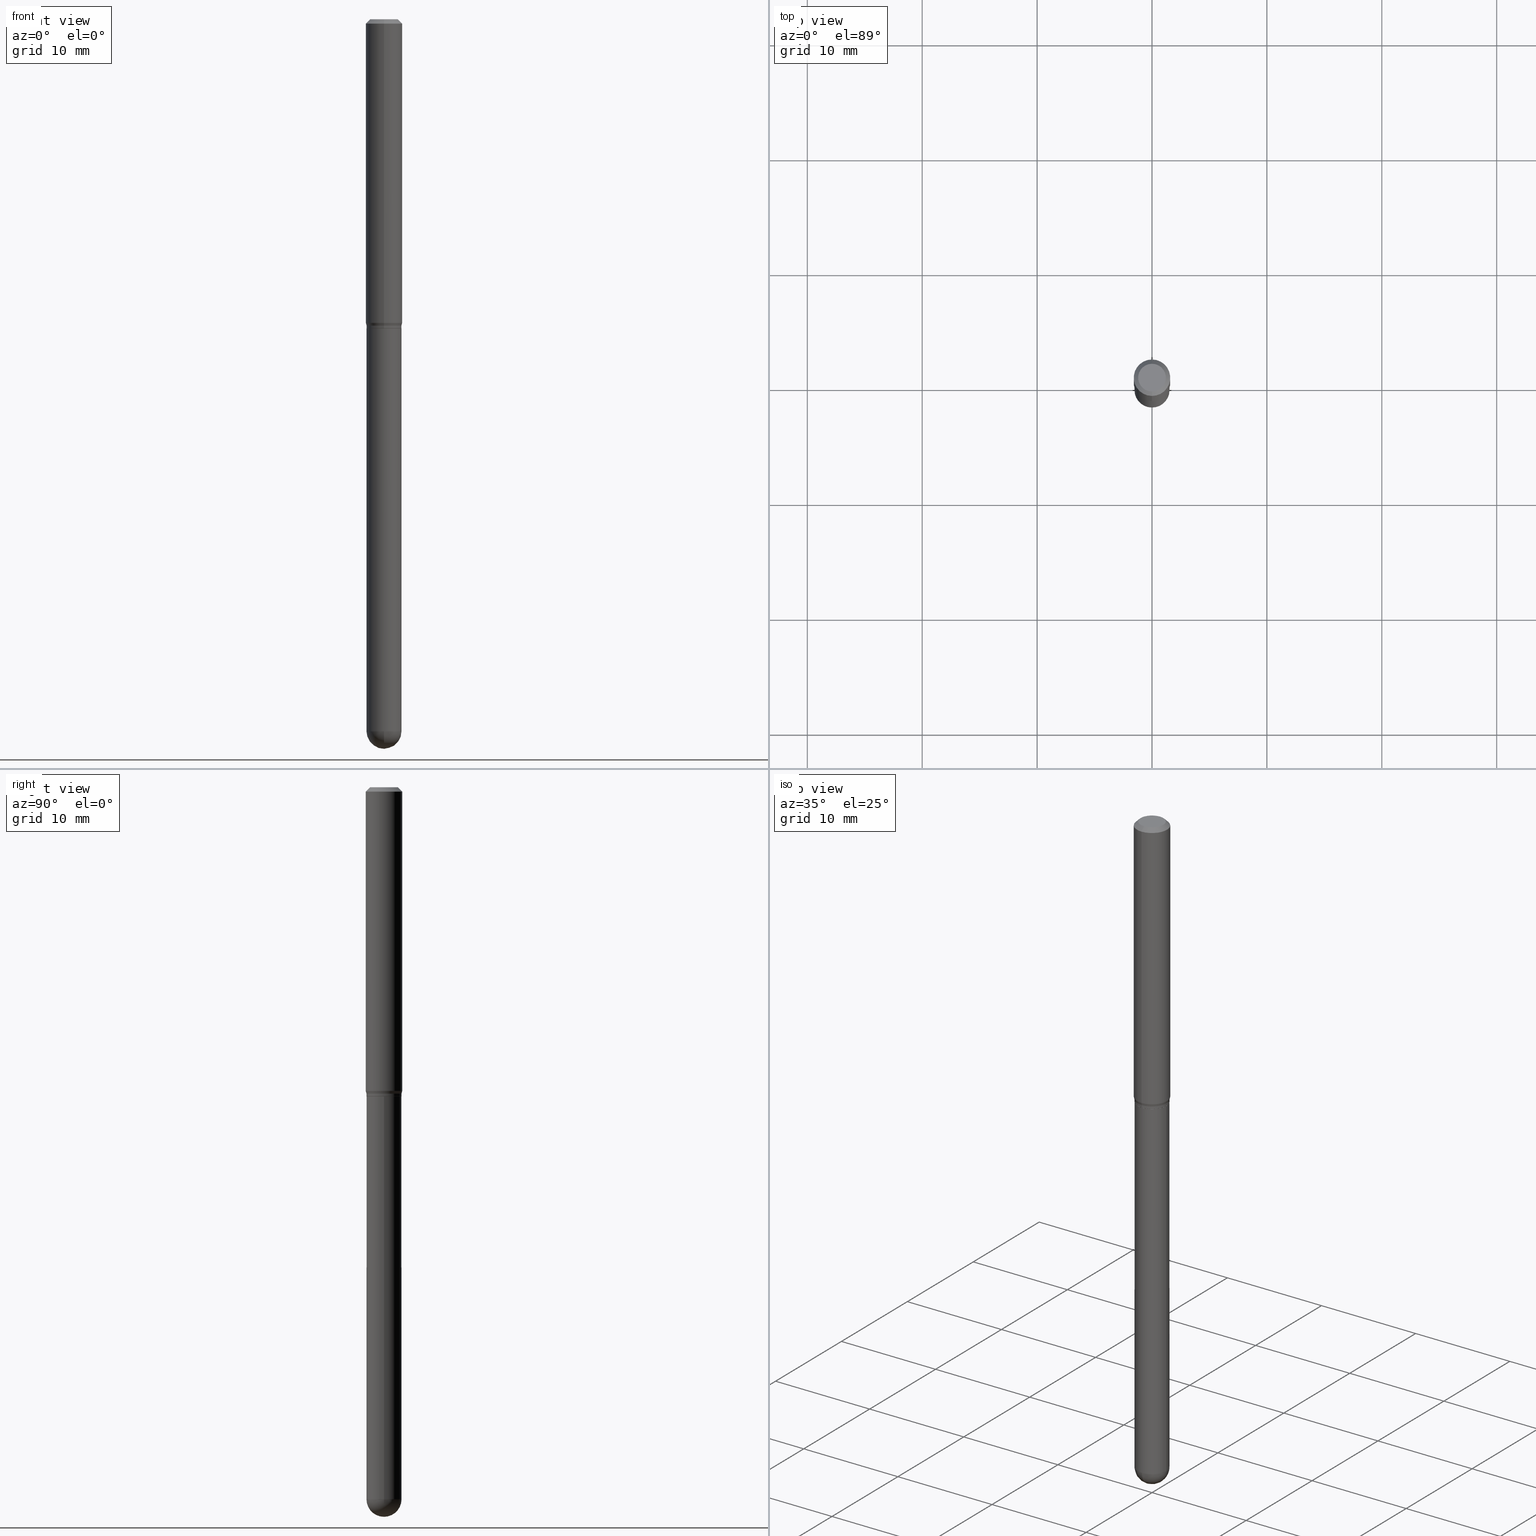
[diagram: canonical four-view strip — front | top / right | iso, engineering-drawing reading convention]
A machine part, canonical four-view strip (front | top / right | iso — engineering-drawing reading convention). The complete STEP part file that produces these views, byte-faithful:
ISO-10303-21;
HEADER;
FILE_DESCRIPTION (( 'STEP AP203' ),
    '1' );
FILE_NAME ('02799.STEP',
    '2024-03-07T21:38:32',
    ( '' ),
    ( '' ),
    'SwSTEP 2.0',
    'SolidWorks 2023',
    '' );
FILE_SCHEMA (( 'CONFIG_CONTROL_DESIGN' ));
ENDSEC;

DATA;
#1 = EDGE_CURVE ( 'NONE', #177, #458, #26, .T. ) ;
#2 = ADVANCED_FACE ( 'NONE', ( #320 ), #318, .T. ) ;
#3 = ORIENTED_EDGE ( 'NONE', *, *, #87, .T. ) ;
#4 = VECTOR ( 'NONE', #411, 39.37007874015748143 ) ;
#5 = CARTESIAN_POINT ( 'NONE',  ( 4.263256414560870649E-16, 0.05999999999999652833, -1.050000000000000488 ) ) ;
#6 = ORIENTED_EDGE ( 'NONE', *, *, #465, .F. ) ;
#7 = CARTESIAN_POINT ( 'NONE',  ( 8.025358332353947452E-45, -1.145689468547074518E-30, -3.281555737865213508E-16 ) ) ;
#8 = PLANE ( 'NONE',  #201 ) ;
#9 = ORIENTED_EDGE ( 'NONE', *, *, #142, .T. ) ;
#10 = DIRECTION ( 'NONE',  ( -2.445468806185136597E-29, 3.491481338843145583E-15, 1.000000000000000000 ) ) ;
#11 = EDGE_CURVE ( 'NONE', #110, #176, #288, .T. ) ;
#12 = AXIS2_PLACEMENT_3D ( 'NONE', #38, #43, #509 ) ;
#13 = VECTOR ( 'NONE', #64, 39.37007874015748143 ) ;
#14 = DIRECTION ( 'NONE',  ( -6.982962677686265922E-15, -1.000000000000000000, 4.370956789862821150E-15 ) ) ;
#15 = EDGE_LOOP ( 'NONE', ( #206, #297, #275, #438 ) ) ;
#16 = CARTESIAN_POINT ( 'NONE',  ( 4.263256414560867198E-16, 0.05999999999999642425, -1.059500000000000330 ) ) ;
#17 = ORIENTED_EDGE ( 'NONE', *, *, #499, .F. ) ;
#18 = CLOSED_SHELL ( 'NONE', ( #77, #2, #249, #356, #425, #202, #257, #467, #397, #405, #296, #137 ) ) ;
#19 = VERTEX_POINT ( 'NONE', #250 ) ;
#20 = CARTESIAN_POINT ( 'NONE',  ( 8.025358332353947452E-45, -1.145689468547074518E-30, -3.281555737865213508E-16 ) ) ;
#21 = LOCAL_TIME ( 16, 38, 32.00000000000000000, #435 ) ;
#22 = PERSON_AND_ORGANIZATION ( #255, #138 ) ;
#23 = ORIENTED_EDGE ( 'NONE', *, *, #208, .F. ) ;
#24 = ORIENTED_EDGE ( 'NONE', *, *, #338, .F. ) ;
#25 = DATE_AND_TIME ( #426, #456 ) ;
#26 = CIRCLE ( 'NONE', #83, 0.04749999999999999362 ) ;
#27 = DIRECTION ( 'NONE',  ( -4.937700262164674260E-15, -0.7071067811865632269, 0.7071067811865319186 ) ) ;
#28 = CIRCLE ( 'NONE', #455, 0.06250000000000000000 ) ;
#29 = APPROVAL_STATUS ( 'not_yet_approved' ) ;
#30 = CARTESIAN_POINT ( 'NONE',  ( 0.000000000000000000, 0.000000000000000000, 0.000000000000000000 ) ) ;
#31 = CARTESIAN_POINT ( 'NONE',  ( 5.966943887091733341E-29, -8.519214466777275048E-15, -2.440000000000000391 ) ) ;
#32 = PERSON_AND_ORGANIZATION ( #255, #138 ) ;
#33 = DIMENSIONAL_EXPONENTS ( 1.000000000000000000, 0.000000000000000000, 0.000000000000000000, 0.000000000000000000, 0.000000000000000000, 0.000000000000000000, 0.000000000000000000 ) ;
#34 = ORIENTED_EDGE ( 'NONE', *, *, #328, .F. ) ;
#35 = DIRECTION ( 'NONE',  ( -6.982962677686265922E-15, -1.000000000000000000, 4.591341165822292005E-15 ) ) ;
#36 = LINE ( 'NONE', #122, #163 ) ;
#37 = DIRECTION ( 'NONE',  ( -6.982962677686265922E-15, -1.000000000000000000, 4.591341165822292005E-15 ) ) ;
#38 = CARTESIAN_POINT ( 'NONE',  ( 5.961812889356657010E-29, -8.526562347572160482E-15, -2.440000000000000391 ) ) ;
#39 = VECTOR ( 'NONE', #117, 39.37007874015748143 ) ;
#40 = AXIS2_PLACEMENT_3D ( 'NONE', #480, #287, #436 ) ;
#41 = CIRCLE ( 'NONE', #384, 0.05999999999999968553 ) ;
#42 = CC_DESIGN_APPROVAL ( #302, ( #85 ) ) ;
#43 = DIRECTION ( 'NONE',  ( -1.000000000000000000, 7.105427357601001070E-15, -4.926315508542082329E-29 ) ) ;
#44 = PERSON_AND_ORGANIZATION ( #255, #138 ) ;
#45 = DIRECTION ( 'NONE',  ( -2.445468806185136597E-29, 3.491481338843145583E-15, 1.000000000000000000 ) ) ;
#46 = EDGE_CURVE ( 'NONE', #378, #447, #51, .T. ) ;
#47 = EDGE_CURVE ( 'NONE', #66, #49, #178, .T. ) ;
#48 = DIRECTION ( 'NONE',  ( 2.445595617880551884E-29, -3.491299737277637269E-15, -1.000000000000000000 ) ) ;
#49 = VERTEX_POINT ( 'NONE', #469 ) ;
#50 = AXIS2_PLACEMENT_3D ( 'NONE', #279, #240, #37 ) ;
#51 = LINE ( 'NONE', #464, #432 ) ;
#52 = CIRCLE ( 'NONE', #179, 0.06000000000000001166 ) ;
#53 = CARTESIAN_POINT ( 'NONE',  ( 2.545057681022836912E-29, -3.633290454131592960E-15, -1.040669872981078825 ) ) ;
#54 = PRODUCT ( '02799', '02799', '', ( #243 ) ) ;
#55 = DIRECTION ( 'NONE',  ( -2.445595617880551604E-29, 3.491299737277637269E-15, 1.000000000000000000 ) ) ;
#56 = EDGE_CURVE ( 'NONE', #110, #217, #423, .T. ) ;
#57 = PLANE ( 'NONE',  #409 ) ;
#58 = EDGE_LOOP ( 'NONE', ( #259, #254, #459, #342 ) ) ;
#59 = CLOSED_SHELL ( 'NONE', ( #229, #451, #410, #232, #189 ) ) ;
#60 = CIRCLE ( 'NONE', #401, 0.05949999999999999040 ) ;
#61 = DIRECTION ( 'NONE',  ( 1.000000000000000000, -6.982962677686266711E-15, 0.000000000000000000 ) ) ;
#62 = VERTEX_POINT ( 'NONE', #70 ) ;
#63 = EDGE_CURVE ( 'NONE', #177, #89, #36, .T. ) ;
#64 = DIRECTION ( 'NONE',  ( -2.445595617880551884E-29, 3.491299737277637269E-15, 1.000000000000000000 ) ) ;
#65 = APPLICATION_PROTOCOL_DEFINITION ( 'international standard', 'config_control_design', 1994, #330 ) ;
#66 = VERTEX_POINT ( 'NONE', #193 ) ;
#67 = CC_DESIGN_PERSON_AND_ORGANIZATION_ASSIGNMENT ( #32, #233, ( #339 ) ) ;
#68 = ORIENTED_EDGE ( 'NONE', *, *, #499, .T. ) ;
#69 = ORIENTED_EDGE ( 'NONE', *, *, #46, .T. ) ;
#70 = CARTESIAN_POINT ( 'NONE',  ( 4.352074256530875856E-16, 0.05999999999999652833, -1.050000000000000488 ) ) ;
#71 = CC_DESIGN_SECURITY_CLASSIFICATION ( #500, ( #85 ) ) ;
#72 = CC_DESIGN_PERSON_AND_ORGANIZATION_ASSIGNMENT ( #112, #306, ( #500 ) ) ;
#73 = CALENDAR_DATE ( 2024, 7, 3 ) ;
#74 = DATE_AND_TIME ( #274, #157 ) ;
#75 = EDGE_LOOP ( 'NONE', ( #343, #109, #98, #24 ) ) ;
#76 = LINE ( 'NONE', #504, #382 ) ;
#77 = ADVANCED_FACE ( 'NONE', ( #80 ), #466, .T. ) ;
#78 = DIRECTION ( 'NONE',  ( 1.000000000000000000, -6.982962677686268288E-15, 0.000000000000000000 ) ) ;
#79 = CARTESIAN_POINT ( 'NONE',  ( -4.189777606611515874E-16, -0.06000000000000384887, -1.050000000000000044 ) ) ;
#80 = FACE_OUTER_BOUND ( 'NONE', #218, .T. ) ;
#81 = ORIENTED_EDGE ( 'NONE', *, *, #385, .T. ) ;
#82 = DIRECTION ( 'NONE',  ( 6.982962677686265922E-15, 1.000000000000000000, -3.483106191921935554E-15 ) ) ;
#83 = AXIS2_PLACEMENT_3D ( 'NONE', #7, #392, #481 ) ;
#84 = LINE ( 'NONE', #387, #352 ) ;
#85 = PRODUCT_DEFINITION_FORMATION_WITH_SPECIFIED_SOURCE ( 'ANY', '', #54, .NOT_KNOWN. ) ;
#86 =( CONVERSION_BASED_UNIT ( 'INCH', #108 ) LENGTH_UNIT ( ) NAMED_UNIT ( #33 ) );
#87 = EDGE_CURVE ( 'NONE', #104, #49, #84, .T. ) ;
#88 = DIRECTION ( 'NONE',  ( 2.445595617880551884E-29, -3.491299737277637269E-15, -1.000000000000000000 ) ) ;
#89 = VERTEX_POINT ( 'NONE', #502 ) ;
#90 = CARTESIAN_POINT ( 'NONE',  ( 2.567875398774580600E-29, -3.665864724141520454E-15, -1.050000000000000266 ) ) ;
#91 = COORDINATED_UNIVERSAL_TIME_OFFSET ( 5, 0, .BEHIND. ) ;
#92 = CARTESIAN_POINT ( 'NONE',  ( 2.592331354953385670E-29, -3.700777721514296381E-15, -1.060000000000000275 ) ) ;
#93 = AXIS2_PLACEMENT_3D ( 'NONE', #424, #383, #231 ) ;
#94 = CARTESIAN_POINT ( 'NONE',  ( 3.668393426820908576E-31, -5.236949605916570239E-17, -0.01500000000000032904 ) ) ;
#95 = EDGE_CURVE ( 'NONE', #217, #162, #76, .T. ) ;
#96 = CARTESIAN_POINT ( 'NONE',  ( 4.440892098500882541E-16, 0.06249999999999995143, -0.01500000000000054588 ) ) ;
#97 = ORIENTED_EDGE ( 'NONE', *, *, #119, .T. ) ;
#98 = ORIENTED_EDGE ( 'NONE', *, *, #95, .T. ) ;
#99 = DIRECTION ( 'NONE',  ( -2.445595617880551884E-29, 3.491299737277637269E-15, 1.000000000000000000 ) ) ;
#100 = AXIS2_PLACEMENT_3D ( 'NONE', #246, #88, #82 ) ;
#101 = DIRECTION ( 'NONE',  ( -6.982962677686265922E-15, -1.000000000000000000, 4.553079989440424892E-15 ) ) ;
#102 = ORIENTED_EDGE ( 'NONE', *, *, #501, .F. ) ;
#103 = DIRECTION ( 'NONE',  ( 2.445595617880551604E-29, -3.491299737277637269E-15, -1.000000000000000000 ) ) ;
#104 = VERTEX_POINT ( 'NONE', #437 ) ;
#105 = CARTESIAN_POINT ( 'NONE',  ( 4.440892098500880569E-16, 0.06249999999999638484, -1.040669872981079047 ) ) ;
#106 = ORIENTED_EDGE ( 'NONE', *, *, #482, .T. ) ;
#107 = AXIS2_PLACEMENT_3D ( 'NONE', #446, #366, #101 ) ;
#108 = LENGTH_MEASURE_WITH_UNIT ( LENGTH_MEASURE( 0.02539999999999999897 ), #314 );
#109 = ORIENTED_EDGE ( 'NONE', *, *, #501, .T. ) ;
#110 = VERTEX_POINT ( 'NONE', #149 ) ;
#111 = ORIENTED_EDGE ( 'NONE', *, *, #167, .T. ) ;
#112 = PERSON_AND_ORGANIZATION ( #255, #138 ) ;
#113 = CIRCLE ( 'NONE', #284, 0.06000000000000018513 ) ;
#114 = ORIENTED_EDGE ( 'NONE', *, *, #301, .T. ) ;
#115 = DIRECTION ( 'NONE',  ( -2.445595617880551884E-29, 3.491299737277637269E-15, 1.000000000000000000 ) ) ;
#116 = PERSON_AND_ORGANIZATION ( #255, #138 ) ;
#117 = DIRECTION ( 'NONE',  ( 4.937700262164548042E-15, 0.7071067811865451302, -0.7071067811865499042 ) ) ;
#118 = CARTESIAN_POINT ( 'NONE',  ( 2.592196934556245308E-29, -3.700970219173735083E-15, -1.060000000000000275 ) ) ;
#119 = EDGE_CURVE ( 'NONE', #135, #104, #200, .T. ) ;
#120 = ORIENTED_EDGE ( 'NONE', *, *, #264, .T. ) ;
#121 = CARTESIAN_POINT ( 'NONE',  ( 2.592331354953385670E-29, -3.700777721514296381E-15, -1.060000000000000275 ) ) ;
#122 = CARTESIAN_POINT ( 'NONE',  ( -4.287811248607203282E-16, -0.06250000000000005551, -0.01500000000000011047 ) ) ;
#123 = AXIS2_PLACEMENT_3D ( 'NONE', #94, #321, #282 ) ;
#124 = CYLINDRICAL_SURFACE ( 'NONE', #367, 0.06250000000000000000 ) ;
#125 = DIRECTION ( 'NONE',  ( -6.982962677686265922E-15, -1.000000000000000000, 3.491299737277637269E-15 ) ) ;
#126 = FACE_OUTER_BOUND ( 'NONE', #414, .T. ) ;
#127 = AXIS2_PLACEMENT_3D ( 'NONE', #292, #55, #169 ) ;
#128 = DIRECTION ( 'NONE',  ( 1.000000000000000000, -6.982962677686266711E-15, 0.000000000000000000 ) ) ;
#129 = DIRECTION ( 'NONE',  ( 1.839019923739607809E-15, 0.2588190451025260130, 0.9659258262890667579 ) ) ;
#130 = EDGE_CURVE ( 'NONE', #371, #66, #391, .T. ) ;
#131 = DIRECTION ( 'NONE',  ( -2.445595617880551884E-29, 3.491299737277637269E-15, 1.000000000000000000 ) ) ;
#132 = CIRCLE ( 'NONE', #395, 0.06250000000000000000 ) ;
#133 = DIRECTION ( 'NONE',  ( -2.445595617880551884E-29, 3.491299737277637269E-15, 1.000000000000000000 ) ) ;
#134 = CARTESIAN_POINT ( 'NONE',  ( 5.961812889356657010E-29, -8.526562347572160482E-15, -2.440000000000000391 ) ) ;
#135 = VERTEX_POINT ( 'NONE', #308 ) ;
#136 = ORIENTED_EDGE ( 'NONE', *, *, #475, .T. ) ;
#137 = ADVANCED_FACE ( 'NONE', ( #461 ), #276, .T. ) ;
#138 = ORGANIZATION ( 'UNSPECIFIED', 'UNSPECIFIED', '' ) ;
#139 = ORIENTED_EDGE ( 'NONE', *, *, #95, .F. ) ;
#140 = DIRECTION ( 'NONE',  ( -2.445595617880551884E-29, 3.491299737277637269E-15, 1.000000000000000000 ) ) ;
#141 = ORIENTED_EDGE ( 'NONE', *, *, #11, .T. ) ;
#142 = EDGE_CURVE ( 'NONE', #49, #66, #209, .T. ) ;
#143 = PERSON_AND_ORGANIZATION_ROLE ( 'design_supplier' ) ;
#144 = ORIENTED_EDGE ( 'NONE', *, *, #56, .T. ) ;
#145 = AXIS2_PLACEMENT_3D ( 'NONE', #421, #503, #362 ) ;
#146 = APPROVAL_ROLE ( '' ) ;
#147 = ORIENTED_EDGE ( 'NONE', *, *, #1, .T. ) ;
#148 = LINE ( 'NONE', #471, #4 ) ;
#149 = CARTESIAN_POINT ( 'NONE',  ( -4.154862793223068546E-16, -0.05950000000000368883, -1.059999999999999831 ) ) ;
#150 = APPROVAL ( #29, 'UNSPECIFIED' ) ;
#151 = DIRECTION ( 'NONE',  ( -6.982962677686265922E-15, -1.000000000000000000, 4.591341165822292005E-15 ) ) ;
#152 = DIRECTION ( 'NONE',  ( -2.445468806185136597E-29, 3.491481338843145583E-15, 1.000000000000000000 ) ) ;
#153 = APPROVAL_DATE_TIME ( #505, #302 ) ;
#154 = EDGE_LOOP ( 'NONE', ( #97, #3, #485, #196, #106 ) ) ;
#155 = DIRECTION ( 'NONE',  ( 1.000000000000000000, -6.982962677686266711E-15, 4.876176775795935793E-29 ) ) ;
#156 = CIRCLE ( 'NONE', #93, 0.06000000000000005329 ) ;
#157 = LOCAL_TIME ( 16, 38, 32.00000000000000000, #345 ) ;
#158 = CARTESIAN_POINT ( 'NONE',  ( 5.961812889356657010E-29, -8.526562347572160482E-15, -2.440000000000000391 ) ) ;
#159 = EDGE_CURVE ( 'NONE', #458, #447, #420, .T. ) ;
#160 = DIRECTION ( 'NONE',  ( -2.445468806185136597E-29, 3.491481338843145583E-15, 1.000000000000000000 ) ) ;
#161 = DIRECTION ( 'NONE',  ( 1.000000000000000000, -6.982962677686265922E-15, 4.883557194083112340E-29 ) ) ;
#162 = VERTEX_POINT ( 'NONE', #79 ) ;
#163 = VECTOR ( 'NONE', #188, 39.37007874015748143 ) ;
#164 = LOCAL_TIME ( 16, 38, 32.00000000000000000, #91 ) ;
#165 = DIRECTION ( 'NONE',  ( -6.982962677686265922E-15, -1.000000000000000000, 4.591341165822292005E-15 ) ) ;
#166 = DIRECTION ( 'NONE',  ( 2.438088387897960049E-29, -3.491481338843145188E-15, -1.000000000000000000 ) ) ;
#167 = EDGE_CURVE ( 'NONE', #458, #177, #334, .T. ) ;
#168 = DIRECTION ( 'NONE',  ( -2.445595617880551884E-29, 3.491299737277637269E-15, 1.000000000000000000 ) ) ;
#169 = DIRECTION ( 'NONE',  ( -6.982962677686265922E-15, -1.000000000000000000, 3.491299737277637269E-15 ) ) ;
#170 = EDGE_LOOP ( 'NONE', ( #262, #327, #114, #34 ) ) ;
#171 = CARTESIAN_POINT ( 'NONE',  ( 0.06000000000000001166, -6.529070103636681305E-15, -2.440000000000000391 ) ) ;
#172 = AXIS2_PLACEMENT_3D ( 'NONE', #298, #133, #483 ) ;
#173 = DIRECTION ( 'NONE',  ( -2.445595617880551884E-29, 3.491299737277637269E-15, 1.000000000000000000 ) ) ;
#174 = EDGE_CURVE ( 'NONE', #269, #182, #324, .T. ) ;
#175 = CARTESIAN_POINT ( 'NONE',  ( 5.966943887091733341E-29, -8.519214466777275048E-15, -2.440000000000000391 ) ) ;
#176 = VERTEX_POINT ( 'NONE', #429 ) ;
#177 = VERTEX_POINT ( 'NONE', #386 ) ;
#178 = CIRCLE ( 'NONE', #374, 0.05999999999999999778 ) ;
#179 = AXIS2_PLACEMENT_3D ( 'NONE', #490, #212, #128 ) ;
#180 = EDGE_LOOP ( 'NONE', ( #23, #416, #444, #381 ) ) ;
#181 = COORDINATED_UNIVERSAL_TIME_OFFSET ( 5, 0, .BEHIND. ) ;
#182 = VERTEX_POINT ( 'NONE', #507 ) ;
#183 = DIRECTION ( 'NONE',  ( -2.445468806185136877E-29, 3.491481338843145188E-15, 1.000000000000000000 ) ) ;
#184 = ORIENTED_EDGE ( 'NONE', *, *, #159, .F. ) ;
#185 = CC_DESIGN_DATE_AND_TIME_ASSIGNMENT ( #74, #226, ( #500 ) ) ;
#186 = VECTOR ( 'NONE', #183, 39.37007874015748143 ) ;
#187 = AXIS2_PLACEMENT_3D ( 'NONE', #199, #358, #355 ) ;
#188 = DIRECTION ( 'NONE',  ( -4.851104656540964275E-15, -0.7071067811865500152, -0.7071067811865450192 ) ) ;
#189 = ADVANCED_FACE ( 'NONE', ( #126 ), #390, .T. ) ;
#190 = CARTESIAN_POINT ( 'NONE',  ( 4.263256414560608846E-16, 0.06000000000000012268, -2.094779842366586680E-16 ) ) ;
#191 = APPROVAL_DATE_TIME ( #25, #150 ) ;
#192 = CARTESIAN_POINT ( 'NONE',  ( 6.111106516595302766E-29, -8.732377287505305293E-15, -2.500000000000000000 ) ) ;
#193 = CARTESIAN_POINT ( 'NONE',  ( 0.05999999999999999778, -4.119947979834910928E-15, -1.060000000000000275 ) ) ;
#194 =( NAMED_UNIT ( * ) SI_UNIT ( $, .STERADIAN. ) SOLID_ANGLE_UNIT ( ) );
#195 = DATE_TIME_ROLE ( 'creation_date' ) ;
#196 = ORIENTED_EDGE ( 'NONE', *, *, #130, .F. ) ;
#197 = CARTESIAN_POINT ( 'NONE',  ( 0.06000000000000001166, -4.189777606611760914E-16, 2.925706065477562106E-30 ) ) ;
#198 = CARTESIAN_POINT ( 'NONE',  ( 2.592331354953385670E-29, -3.700777721514296381E-15, -1.060000000000000275 ) ) ;
#199 = CARTESIAN_POINT ( 'NONE',  ( 2.567875398774580600E-29, -3.665864724141520454E-15, -1.050000000000000266 ) ) ;
#200 = CIRCLE ( 'NONE', #487, 0.06000000000000001166 ) ;
#201 = AXIS2_PLACEMENT_3D ( 'NONE', #211, #103, #251 ) ;
#202 = ADVANCED_FACE ( 'NONE', ( #393 ), #222, .T. ) ;
#203 = DIRECTION ( 'NONE',  ( -6.982962677686266711E-15, -1.000000000000000000, 3.491299737277637269E-15 ) ) ;
#204 = PERSON_AND_ORGANIZATION_ROLE ( 'design_owner' ) ;
#205 = DIRECTION ( 'NONE',  ( 1.000000000000000000, -6.982962677686266711E-15, 4.876176775795935793E-29 ) ) ;
#206 = ORIENTED_EDGE ( 'NONE', *, *, #46, .F. ) ;
#207 = DIRECTION ( 'NONE',  ( 6.982962677686265922E-15, 1.000000000000000000, -3.483106191921935554E-15 ) ) ;
#208 = EDGE_CURVE ( 'NONE', #269, #135, #41, .T. ) ;
#209 = CIRCLE ( 'NONE', #486, 0.05999999999999999778 ) ;
#210 = CIRCLE ( 'NONE', #123, 0.06250000000000000000 ) ;
#211 = CARTESIAN_POINT ( 'NONE',  ( 3.316907271900976096E-16, 0.04749999999999999362, -3.299145244139483747E-16 ) ) ;
#212 = DIRECTION ( 'NONE',  ( -2.445468806185136597E-29, 3.491481338843145583E-15, 1.000000000000000000 ) ) ;
#213 = CARTESIAN_POINT ( 'NONE',  ( 4.189777606612018773E-16, 0.05999999999999629241, -1.060000000000000497 ) ) ;
#214 = AXIS2_PLACEMENT_3D ( 'NONE', #398, #45, #205 ) ;
#215 = AXIS2_PLACEMENT_3D ( 'NONE', #373, #305, #460 ) ;
#216 = LINE ( 'NONE', #5, #326 ) ;
#217 = VERTEX_POINT ( 'NONE', #510 ) ;
#218 = EDGE_LOOP ( 'NONE', ( #81, #136, #310, #139 ) ) ;
#219 = ORIENTED_EDGE ( 'NONE', *, *, #264, .F. ) ;
#220 = VECTOR ( 'NONE', #27, 39.37007874015748143 ) ;
#221 = DATE_AND_TIME ( #73, #164 ) ;
#222 = CONICAL_SURFACE ( 'NONE', #187, 0.06000000000000018513, 0.2617993877991514062 ) ;
#223 = COORDINATED_UNIVERSAL_TIME_OFFSET ( 5, 0, .BEHIND. ) ;
#224 = APPROVAL_PERSON_ORGANIZATION ( #281, #150, #283 ) ;
#225 = ORIENTED_EDGE ( 'NONE', *, *, #323, .T. ) ;
#226 = DATE_TIME_ROLE ( 'classification_date' ) ;
#227 = ORIENTED_EDGE ( 'NONE', *, *, #130, .T. ) ;
#228 = DIRECTION ( 'NONE',  ( -6.982962677686265922E-15, -1.000000000000000000, 3.491299737277637269E-15 ) ) ;
#229 = ADVANCED_FACE ( 'NONE', ( #478 ), #354, .T. ) ;
#230 = DIRECTION ( 'NONE',  ( -2.445595617880551884E-29, 3.491299737277637269E-15, 1.000000000000000000 ) ) ;
#231 = DIRECTION ( 'NONE',  ( -6.982962677686265922E-15, -1.000000000000000000, 4.553079989440434359E-15 ) ) ;
#232 = ADVANCED_FACE ( 'NONE', ( #289 ), #439, .T. ) ;
#233 = PERSON_AND_ORGANIZATION_ROLE ( 'creator' ) ;
#234 = AXIS2_PLACEMENT_3D ( 'NONE', #399, #48, #207 ) ;
#235 = FACE_OUTER_BOUND ( 'NONE', #15, .T. ) ;
#236 =( NAMED_UNIT ( * ) PLANE_ANGLE_UNIT ( ) SI_UNIT ( $, .RADIAN. ) );
#237 = CALENDAR_DATE ( 2024, 7, 3 ) ;
#238 = ORIENTED_EDGE ( 'NONE', *, *, #247, .F. ) ;
#239 = DIRECTION ( 'NONE',  ( -2.445468806185136597E-29, 3.491481338843145583E-15, 1.000000000000000000 ) ) ;
#240 = DIRECTION ( 'NONE',  ( -2.445595617880551884E-29, 3.491299737277637269E-15, 1.000000000000000000 ) ) ;
#241 = DIRECTION ( 'NONE',  ( -2.445595617880551884E-29, 3.491299737277637269E-15, 1.000000000000000000 ) ) ;
#242 = DIRECTION ( 'NONE',  ( -2.445595617880551884E-29, 3.491299737277637269E-15, 1.000000000000000000 ) ) ;
#243 = MECHANICAL_CONTEXT ( 'NONE', #491, 'mechanical' ) ;
#244 = AXIS2_PLACEMENT_3D ( 'NONE', #512, #160, #155 ) ;
#245 = UNCERTAINTY_MEASURE_WITH_UNIT (LENGTH_MEASURE( 1.000000000000000082E-05 ), #86, 'distance_accuracy_value', 'NONE');
#246 = CARTESIAN_POINT ( 'NONE',  ( 3.668393426820908576E-31, -5.236949605916570239E-17, -0.01500000000000032904 ) ) ;
#247 = EDGE_CURVE ( 'NONE', #89, #447, #210, .T. ) ;
#248 = FACE_OUTER_BOUND ( 'NONE', #265, .T. ) ;
#249 = ADVANCED_FACE ( 'NONE', ( #476 ), #252, .T. ) ;
#250 = CARTESIAN_POINT ( 'NONE',  ( -4.364351673553660314E-16, -0.06250000000000360822, -1.040669872981078603 ) ) ;
#251 = DIRECTION ( 'NONE',  ( 6.982962677686265922E-15, 1.000000000000000000, -3.491299737277637269E-15 ) ) ;
#252 = CONICAL_SURFACE ( 'NONE', #100, 0.06250000000000000000, 0.7853981633974483900 ) ;
#253 = SPHERICAL_SURFACE ( 'NONE', #489, 0.05999999999999968553 ) ;
#254 = ORIENTED_EDGE ( 'NONE', *, *, #357, .T. ) ;
#255 = PERSON ( 'UNSPECIFIED', 'UNSPECIFIED', 'UNSPECIFIED', ('UNSPECIFIED'), ('UNSPECIFIED'), ('UNSPECIFIED') ) ;
#256 = FACE_OUTER_BOUND ( 'NONE', #299, .T. ) ;
#257 = ADVANCED_FACE ( 'NONE', ( #235 ), #124, .T. ) ;
#258 = PLANE ( 'NONE',  #127 ) ;
#259 = ORIENTED_EDGE ( 'NONE', *, *, #312, .T. ) ;
#260 = AXIS2_PLACEMENT_3D ( 'NONE', #317, #280, #468 ) ;
#261 = APPROVAL ( #278, 'UNSPECIFIED' ) ;
#262 = ORIENTED_EDGE ( 'NONE', *, *, #357, .F. ) ;
#263 = MANIFOLD_SOLID_BREP ( 'Body-Move/Copy2[1]', #59 ) ;
#264 = EDGE_CURVE ( 'NONE', #176, #110, #60, .T. ) ;
#265 = EDGE_LOOP ( 'NONE', ( #497, #498, #412, #492 ) ) ;
#266 = DESIGN_CONTEXT ( 'detailed design', #330, 'design' ) ;
#267 = SHAPE_DEFINITION_REPRESENTATION ( #402, #452 ) ;
#268 = PERSON_AND_ORGANIZATION ( #255, #138 ) ;
#269 = VERTEX_POINT ( 'NONE', #192 ) ;
#270 = DIRECTION ( 'NONE',  ( 1.000000000000000000, -6.982962677686266711E-15, 0.000000000000000000 ) ) ;
#271 = CC_DESIGN_PERSON_AND_ORGANIZATION_ASSIGNMENT ( #496, #143, ( #85 ) ) ;
#272 = CIRCLE ( 'NONE', #508, 0.06000000000000018513 ) ;
#273 = CIRCLE ( 'NONE', #319, 0.06000000000000001166 ) ;
#274 = CALENDAR_DATE ( 2024, 7, 3 ) ;
#275 = ORIENTED_EDGE ( 'NONE', *, *, #370, .T. ) ;
#276 = CYLINDRICAL_SURFACE ( 'NONE', #145, 0.06000000000000012268 ) ;
#277 = EDGE_CURVE ( 'NONE', #447, #89, #494, .T. ) ;
#278 = APPROVAL_STATUS ( 'not_yet_approved' ) ;
#279 = CARTESIAN_POINT ( 'NONE',  ( 2.592331354953385670E-29, -3.700777721514296381E-15, -1.060000000000000275 ) ) ;
#280 = DIRECTION ( 'NONE',  ( -2.445468806185136597E-29, 3.491481338843145583E-15, 1.000000000000000000 ) ) ;
#281 = PERSON_AND_ORGANIZATION ( #255, #138 ) ;
#282 = DIRECTION ( 'NONE',  ( -6.982962677686265922E-15, -1.000000000000000000, 3.483106191921935554E-15 ) ) ;
#283 = APPROVAL_ROLE ( '' ) ;
#284 = AXIS2_PLACEMENT_3D ( 'NONE', #90, #241, #360 ) ;
#285 = DIRECTION ( 'NONE',  ( 6.982962677686265922E-15, 1.000000000000000000, 0.000000000000000000 ) ) ;
#286 = DIRECTION ( 'NONE',  ( -2.445595617880551884E-29, 3.491299737277637269E-15, 1.000000000000000000 ) ) ;
#287 = DIRECTION ( 'NONE',  ( -2.445595617880551884E-29, 3.491299737277637269E-15, 1.000000000000000000 ) ) ;
#288 = CIRCLE ( 'NONE', #400, 0.05949999999999999040 ) ;
#289 = FACE_OUTER_BOUND ( 'NONE', #408, .T. ) ;
#290 = CC_DESIGN_APPROVAL ( #261, ( #500 ) ) ;
#291 = DIRECTION ( 'NONE',  ( -2.445595617880551884E-29, 3.491299737277637269E-15, 1.000000000000000000 ) ) ;
#292 = CARTESIAN_POINT ( 'NONE',  ( 2.592331354953385670E-29, -3.700777721514296381E-15, -1.060000000000000275 ) ) ;
#293 = FACE_OUTER_BOUND ( 'NONE', #58, .T. ) ;
#294 = VECTOR ( 'NONE', #473, 39.37007874015748854 ) ;
#295 = FACE_OUTER_BOUND ( 'NONE', #307, .T. ) ;
#296 = ADVANCED_FACE ( 'NONE', ( #349 ), #417, .T. ) ;
#297 = ORIENTED_EDGE ( 'NONE', *, *, #328, .T. ) ;
#298 = CARTESIAN_POINT ( 'NONE',  ( 0.000000000000000000, 0.000000000000000000, 0.000000000000000000 ) ) ;
#299 = EDGE_LOOP ( 'NONE', ( #493, #219 ) ) ;
#300 = ORIENTED_EDGE ( 'NONE', *, *, #465, .T. ) ;
#301 = EDGE_CURVE ( 'NONE', #162, #19, #315, .T. ) ;
#302 = APPROVAL ( #350, 'UNSPECIFIED' ) ;
#303 = ORIENTED_EDGE ( 'NONE', *, *, #142, .F. ) ;
#304 = ORIENTED_EDGE ( 'NONE', *, *, #56, .F. ) ;
#305 = DIRECTION ( 'NONE',  ( 0.000000000000000000, 0.000000000000000000, 1.000000000000000000 ) ) ;
#306 = PERSON_AND_ORGANIZATION_ROLE ( 'classification_officer' ) ;
#307 = EDGE_LOOP ( 'NONE', ( #346, #69, #238, #369 ) ) ;
#308 = CARTESIAN_POINT ( 'NONE',  ( 4.189777606612345657E-16, 0.05999999999999131722, -2.440000000000000391 ) ) ;
#309 = CIRCLE ( 'NONE', #260, 0.06000000000000001166 ) ;
#310 = ORIENTED_EDGE ( 'NONE', *, *, #312, .F. ) ;
#311 = CARTESIAN_POINT ( 'NONE',  ( 4.364351673553919652E-16, 0.06249999999999995143, -0.01500000000000054588 ) ) ;
#312 = EDGE_CURVE ( 'NONE', #162, #62, #113, .T. ) ;
#313 = DIRECTION ( 'NONE',  ( -2.445468806185136877E-29, 3.491481338843145188E-15, 1.000000000000000000 ) ) ;
#314 =( LENGTH_UNIT ( ) NAMED_UNIT ( * ) SI_UNIT ( $, .METRE. ) );
#315 = LINE ( 'NONE', #440, #294 ) ;
#316 = CARTESIAN_POINT ( 'NONE',  ( -4.154862793223068546E-16, -0.05950000000000368883, -1.059999999999999831 ) ) ;
#317 = CARTESIAN_POINT ( 'NONE',  ( 5.966943887091733341E-29, -8.519214466777275048E-15, -2.440000000000000391 ) ) ;
#318 = CONICAL_SURFACE ( 'NONE', #50, 0.05949999999999999040, 0.7853981633974739252 ) ;
#319 = AXIS2_PLACEMENT_3D ( 'NONE', #175, #10, #61 ) ;
#320 = FACE_OUTER_BOUND ( 'NONE', #457, .T. ) ;
#321 = DIRECTION ( 'NONE',  ( -2.445595617880551884E-29, 3.491299737277637269E-15, 1.000000000000000000 ) ) ;
#322 = CARTESIAN_POINT ( 'NONE',  ( 5.961812889356657010E-29, -8.526562347572160482E-15, -2.440000000000000391 ) ) ;
#323 = EDGE_CURVE ( 'NONE', #104, #182, #52, .T. ) ;
#324 = CIRCLE ( 'NONE', #12, 0.05999999999999968553 ) ;
#325 = DIRECTION ( 'NONE',  ( -2.445595617880551884E-29, 3.491299737277637269E-15, 1.000000000000000000 ) ) ;
#326 = VECTOR ( 'NONE', #129, 39.37007874015748854 ) ;
#327 = ORIENTED_EDGE ( 'NONE', *, *, #338, .T. ) ;
#328 = EDGE_CURVE ( 'NONE', #378, #19, #132, .T. ) ;
#329 = DIRECTION ( 'NONE',  ( -6.982962677686265922E-15, -1.000000000000000000, 4.553079989440424892E-15 ) ) ;
#330 = APPLICATION_CONTEXT ( 'configuration controlled 3d designs of mechanical parts and assemblies' ) ;
#331 = FACE_OUTER_BOUND ( 'NONE', #348, .T. ) ;
#332 = ORIENTED_EDGE ( 'NONE', *, *, #87, .F. ) ;
#333 = CYLINDRICAL_SURFACE ( 'NONE', #172, 0.06250000000000000000 ) ;
#334 = CIRCLE ( 'NONE', #394, 0.04749999999999999362 ) ;
#335 = FACE_OUTER_BOUND ( 'NONE', #180, .T. ) ;
#336 = CARTESIAN_POINT ( 'NONE',  ( 2.567875398774580600E-29, -3.665864724141520454E-15, -1.050000000000000266 ) ) ;
#337 = ORIENTED_EDGE ( 'NONE', *, *, #208, .T. ) ;
#338 = EDGE_CURVE ( 'NONE', #62, #162, #272, .T. ) ;
#339 = PRODUCT_DEFINITION ( 'UNKNOWN', '', #85, #266 ) ;
#340 = EDGE_LOOP ( 'NONE', ( #17, #120, #144, #102 ) ) ;
#341 = CIRCLE ( 'NONE', #462, 0.06000000000000005329 ) ;
#342 = ORIENTED_EDGE ( 'NONE', *, *, #301, .F. ) ;
#343 = ORIENTED_EDGE ( 'NONE', *, *, #475, .F. ) ;
#344 = ORIENTED_EDGE ( 'NONE', *, *, #47, .T. ) ;
#345 = COORDINATED_UNIVERSAL_TIME_OFFSET ( 5, 0, .BEHIND. ) ;
#346 = ORIENTED_EDGE ( 'NONE', *, *, #380, .T. ) ;
#347 = CARTESIAN_POINT ( 'NONE',  ( 0.000000000000000000, 0.000000000000000000, 0.000000000000000000 ) ) ;
#348 = EDGE_LOOP ( 'NONE', ( #344, #9 ) ) ;
#349 = FACE_OUTER_BOUND ( 'NONE', #340, .T. ) ;
#350 = APPROVAL_STATUS ( 'not_yet_approved' ) ;
#351 = ORIENTED_EDGE ( 'NONE', *, *, #174, .F. ) ;
#352 = VECTOR ( 'NONE', #313, 39.37007874015748143 ) ;
#353 = AXIS2_PLACEMENT_3D ( 'NONE', #92, #286, #151 ) ;
#354 = CYLINDRICAL_SURFACE ( 'NONE', #244, 0.06000000000000001166 ) ;
#355 = DIRECTION ( 'NONE',  ( -6.982962677686265922E-15, -1.000000000000000000, 4.553079989440424892E-15 ) ) ;
#356 = ADVANCED_FACE ( 'NONE', ( #295 ), #333, .T. ) ;
#357 = EDGE_CURVE ( 'NONE', #62, #378, #216, .T. ) ;
#358 = DIRECTION ( 'NONE',  ( -2.445595617880551884E-29, 3.491299737277637269E-15, 1.000000000000000000 ) ) ;
#359 = ORIENTED_EDGE ( 'NONE', *, *, #63, .T. ) ;
#360 = DIRECTION ( 'NONE',  ( -6.982962677686265922E-15, -1.000000000000000000, 4.553079989440424892E-15 ) ) ;
#361 =( GEOMETRIC_REPRESENTATION_CONTEXT ( 3 ) GLOBAL_UNCERTAINTY_ASSIGNED_CONTEXT ( ( #245 ) ) GLOBAL_UNIT_ASSIGNED_CONTEXT ( ( #86, #236, #194 ) ) REPRESENTATION_CONTEXT ( 'NONE', 'WORKASPACE' ) );
#362 = DIRECTION ( 'NONE',  ( -6.982962677686265922E-15, -1.000000000000000000, 3.491299737277637269E-15 ) ) ;
#363 = DIRECTION ( 'NONE',  ( -1.000000000000000000, 6.982962677686265922E-15, -4.876176775795935793E-29 ) ) ;
#364 = ORIENTED_EDGE ( 'NONE', *, *, #385, .F. ) ;
#365 = DIRECTION ( 'NONE',  ( 6.982962677686266711E-15, 1.000000000000000000, -4.553079989440462758E-15 ) ) ;
#366 = DIRECTION ( 'NONE',  ( -2.445595617880551884E-29, 3.491299737277637269E-15, 1.000000000000000000 ) ) ;
#367 = AXIS2_PLACEMENT_3D ( 'NONE', #30, #242, #125 ) ;
#368 = DIRECTION ( 'NONE',  ( -6.982962677686265922E-15, -1.000000000000000000, 4.553079989440434359E-15 ) ) ;
#369 = ORIENTED_EDGE ( 'NONE', *, *, #370, .F. ) ;
#370 = EDGE_CURVE ( 'NONE', #19, #89, #404, .T. ) ;
#371 = VERTEX_POINT ( 'NONE', #171 ) ;
#372 = EDGE_LOOP ( 'NONE', ( #422, #359, #419, #184 ) ) ;
#373 = CARTESIAN_POINT ( 'NONE',  ( 0.000000000000000000, 0.000000000000000000, 0.000000000000000000 ) ) ;
#374 = AXIS2_PLACEMENT_3D ( 'NONE', #118, #239, #430 ) ;
#375 = CONICAL_SURFACE ( 'NONE', #234, 0.06250000000000000000, 0.7853981633974483900 ) ;
#376 = APPROVAL_PERSON_ORGANIZATION ( #116, #261, #474 ) ;
#377 = CC_DESIGN_PERSON_AND_ORGANIZATION_ASSIGNMENT ( #268, #415, ( #85 ) ) ;
#378 = VERTEX_POINT ( 'NONE', #105 ) ;
#379 = DIRECTION ( 'NONE',  ( -2.445595617880551884E-29, 3.491299737277637269E-15, 1.000000000000000000 ) ) ;
#380 = EDGE_CURVE ( 'NONE', #19, #378, #28, .T. ) ;
#381 = ORIENTED_EDGE ( 'NONE', *, *, #119, .F. ) ;
#382 = VECTOR ( 'NONE', #115, 39.37007874015748143 ) ;
#383 = DIRECTION ( 'NONE',  ( -2.445595617880551884E-29, 3.491299737277637269E-15, 1.000000000000000000 ) ) ;
#384 = AXIS2_PLACEMENT_3D ( 'NONE', #322, #161, #285 ) ;
#385 = EDGE_CURVE ( 'NONE', #217, #506, #341, .T. ) ;
#386 = CARTESIAN_POINT ( 'NONE',  ( -3.773273898774340269E-16, -0.04749999999999999362, -1.623188362658335776E-16 ) ) ;
#387 = CARTESIAN_POINT ( 'NONE',  ( -0.06000000000000001166, 4.263256414560601944E-16, -2.951361054152943763E-30 ) ) ;
#388 = CC_DESIGN_DATE_AND_TIME_ASSIGNMENT ( #389, #195, ( #339 ) ) ;
#389 = DATE_AND_TIME ( #237, #21 ) ;
#390 = CYLINDRICAL_SURFACE ( 'NONE', #214, 0.06000000000000001166 ) ;
#391 = LINE ( 'NONE', #197, #186 ) ;
#392 = DIRECTION ( 'NONE',  ( -2.445595617880551884E-29, 3.491299737277637269E-15, 1.000000000000000000 ) ) ;
#393 = FACE_OUTER_BOUND ( 'NONE', #170, .T. ) ;
#394 = AXIS2_PLACEMENT_3D ( 'NONE', #20, #140, #203 ) ;
#395 = AXIS2_PLACEMENT_3D ( 'NONE', #53, #173, #14 ) ;
#396 = DIRECTION ( 'NONE',  ( 6.982962677686266711E-15, 1.000000000000000000, -4.553079989440462758E-15 ) ) ;
#397 = ADVANCED_FACE ( 'NONE', ( #449 ), #8, .F. ) ;
#398 = CARTESIAN_POINT ( 'NONE',  ( 0.000000000000000000, 0.000000000000000000, 0.000000000000000000 ) ) ;
#399 = CARTESIAN_POINT ( 'NONE',  ( 3.668393426820908576E-31, -5.236949605916570239E-17, -0.01500000000000032904 ) ) ;
#400 = AXIS2_PLACEMENT_3D ( 'NONE', #198, #168, #165 ) ;
#401 = AXIS2_PLACEMENT_3D ( 'NONE', #121, #325, #35 ) ;
#402 = PRODUCT_DEFINITION_SHAPE ( 'NONE', 'NONE',  #339 ) ;
#403 = DIRECTION ( 'NONE',  ( -1.000000000000000000, 6.982962677686266711E-15, -4.883557194083113462E-29 ) ) ;
#404 = LINE ( 'NONE', #484, #479 ) ;
#405 = ADVANCED_FACE ( 'NONE', ( #256 ), #258, .F. ) ;
#406 = CARTESIAN_POINT ( 'NONE',  ( 3.840629472727447874E-16, 0.04749999999999999362, -4.939923113072091241E-16 ) ) ;
#407 = AXIS2_PLACEMENT_3D ( 'NONE', #347, #379, #228 ) ;
#408 = EDGE_LOOP ( 'NONE', ( #351, #337, #428, #6 ) ) ;
#409 = AXIS2_PLACEMENT_3D ( 'NONE', #213, #166, #363 ) ;
#410 = ADVANCED_FACE ( 'NONE', ( #331 ), #57, .F. ) ;
#411 = DIRECTION ( 'NONE',  ( 5.024295867788190974E-15, 0.7071067811865681119, 0.7071067811865270336 ) ) ;
#412 = ORIENTED_EDGE ( 'NONE', *, *, #159, .T. ) ;
#413 = CARTESIAN_POINT ( 'NONE',  ( 2.592196934556245308E-29, -3.700970219173735083E-15, -1.060000000000000275 ) ) ;
#414 = EDGE_LOOP ( 'NONE', ( #332, #225, #300, #227, #303 ) ) ;
#415 = PERSON_AND_ORGANIZATION_ROLE ( 'creator' ) ;
#416 = ORIENTED_EDGE ( 'NONE', *, *, #174, .T. ) ;
#417 = CONICAL_SURFACE ( 'NONE', #353, 0.05949999999999999040, 0.7853981633974739252 ) ;
#418 = SECURITY_CLASSIFICATION_LEVEL ( 'unclassified' ) ;
#419 = ORIENTED_EDGE ( 'NONE', *, *, #247, .T. ) ;
#420 = LINE ( 'NONE', #311, #39 ) ;
#421 = CARTESIAN_POINT ( 'NONE',  ( 0.000000000000000000, 0.000000000000000000, 0.000000000000000000 ) ) ;
#422 = ORIENTED_EDGE ( 'NONE', *, *, #1, .F. ) ;
#423 = LINE ( 'NONE', #316, #220 ) ;
#424 = CARTESIAN_POINT ( 'NONE',  ( 2.591108557144445332E-29, -3.699032071645657032E-15, -1.059500000000000108 ) ) ;
#425 = ADVANCED_FACE ( 'NONE', ( #293 ), #472, .T. ) ;
#426 = CALENDAR_DATE ( 2024, 7, 3 ) ;
#427 = CC_DESIGN_PERSON_AND_ORGANIZATION_ASSIGNMENT ( #44, #204, ( #54 ) ) ;
#428 = ORIENTED_EDGE ( 'NONE', *, *, #482, .F. ) ;
#429 = CARTESIAN_POINT ( 'NONE',  ( 4.245492846166858761E-16, 0.05949999999999629197, -1.060000000000000497 ) ) ;
#430 = DIRECTION ( 'NONE',  ( 1.000000000000000000, -6.982962677686268288E-15, 0.000000000000000000 ) ) ;
#431 = MANIFOLD_SOLID_BREP ( 'Body-Move/Copy2[2]', #18 ) ;
#432 = VECTOR ( 'NONE', #230, 39.37007874015748143 ) ;
#433 = AXIS2_PLACEMENT_3D ( 'NONE', #158, #442, #396 ) ;
#434 = LOCAL_TIME ( 16, 38, 32.00000000000000000, #181 ) ;
#435 = COORDINATED_UNIVERSAL_TIME_OFFSET ( 5, 0, .BEHIND. ) ;
#436 = DIRECTION ( 'NONE',  ( -6.982962677686265922E-15, -1.000000000000000000, 3.483106191921935554E-15 ) ) ;
#437 = CARTESIAN_POINT ( 'NONE',  ( -0.06000000000000001166, -5.683766701519444970E-15, -2.440000000000000391 ) ) ;
#438 = ORIENTED_EDGE ( 'NONE', *, *, #277, .F. ) ;
#439 = SPHERICAL_SURFACE ( 'NONE', #433, 0.05999999999999968553 ) ;
#440 = CARTESIAN_POINT ( 'NONE',  ( -4.189777606611515874E-16, -0.06000000000000384887, -1.050000000000000044 ) ) ;
#441 = APPROVAL_PERSON_ORGANIZATION ( #22, #302, #146 ) ;
#442 = DIRECTION ( 'NONE',  ( -1.000000000000000000, 6.982962677686266711E-15, -4.883557194083113462E-29 ) ) ;
#443 = DIRECTION ( 'NONE',  ( -2.445595617880551884E-29, 3.491299737277637269E-15, 1.000000000000000000 ) ) ;
#444 = ORIENTED_EDGE ( 'NONE', *, *, #323, .F. ) ;
#445 = CARTESIAN_POINT ( 'NONE',  ( 2.545057681022836912E-29, -3.633290454131592960E-15, -1.040669872981078825 ) ) ;
#446 = CARTESIAN_POINT ( 'NONE',  ( 2.567875398774580600E-29, -3.665864724141520454E-15, -1.050000000000000266 ) ) ;
#447 = VERTEX_POINT ( 'NONE', #96 ) ;
#448 = CC_DESIGN_APPROVAL ( #150, ( #339 ) ) ;
#449 = FACE_OUTER_BOUND ( 'NONE', #454, .T. ) ;
#450 = DIRECTION ( 'NONE',  ( -6.982962677686265922E-15, -1.000000000000000000, 4.370956789862821150E-15 ) ) ;
#451 = ADVANCED_FACE ( 'NONE', ( #335 ), #253, .T. ) ;
#452 = ADVANCED_BREP_SHAPE_REPRESENTATION ( '02799', ( #263, #431, #215 ), #361 ) ;
#453 = LINE ( 'NONE', #190, #13 ) ;
#454 = EDGE_LOOP ( 'NONE', ( #111, #147 ) ) ;
#455 = AXIS2_PLACEMENT_3D ( 'NONE', #445, #131, #450 ) ;
#456 = LOCAL_TIME ( 16, 38, 32.00000000000000000, #223 ) ;
#457 = EDGE_LOOP ( 'NONE', ( #141, #68, #364, #304 ) ) ;
#458 = VERTEX_POINT ( 'NONE', #406 ) ;
#459 = ORIENTED_EDGE ( 'NONE', *, *, #380, .F. ) ;
#460 = DIRECTION ( 'NONE',  ( 1.000000000000000000, 0.000000000000000000, 0.000000000000000000 ) ) ;
#461 = FACE_OUTER_BOUND ( 'NONE', #75, .T. ) ;
#462 = AXIS2_PLACEMENT_3D ( 'NONE', #488, #443, #368 ) ;
#463 = CALENDAR_DATE ( 2024, 7, 3 ) ;
#464 = CARTESIAN_POINT ( 'NONE',  ( 4.440892098500625669E-16, 0.06250000000000000000, -2.182062335798523293E-16 ) ) ;
#465 = EDGE_CURVE ( 'NONE', #182, #371, #273, .T. ) ;
#466 = CYLINDRICAL_SURFACE ( 'NONE', #407, 0.06000000000000012268 ) ;
#467 = ADVANCED_FACE ( 'NONE', ( #248 ), #375, .T. ) ;
#468 = DIRECTION ( 'NONE',  ( 1.000000000000000000, -6.982962677686266711E-15, 0.000000000000000000 ) ) ;
#469 = CARTESIAN_POINT ( 'NONE',  ( -0.05999999999999999778, -5.683766701519444970E-15, -1.060000000000000275 ) ) ;
#470 = DIRECTION ( 'NONE',  ( -2.445468806185136597E-29, 3.491481338843145583E-15, 1.000000000000000000 ) ) ;
#471 = CARTESIAN_POINT ( 'NONE',  ( 4.227729277772853776E-16, 0.05949999999999629197, -1.060000000000000497 ) ) ;
#472 = CONICAL_SURFACE ( 'NONE', #107, 0.06000000000000018513, 0.2617993877991514062 ) ;
#473 = DIRECTION ( 'NONE',  ( -1.807323732225338028E-15, -0.2588190451025192962, 0.9659258262890687563 ) ) ;
#474 = APPROVAL_ROLE ( '' ) ;
#475 = EDGE_CURVE ( 'NONE', #506, #62, #453, .T. ) ;
#476 = FACE_OUTER_BOUND ( 'NONE', #372, .T. ) ;
#477 = APPLICATION_PROTOCOL_DEFINITION ( 'international standard', 'config_control_design', 1994, #491 ) ;
#478 = FACE_OUTER_BOUND ( 'NONE', #154, .T. ) ;
#479 = VECTOR ( 'NONE', #99, 39.37007874015748143 ) ;
#480 = CARTESIAN_POINT ( 'NONE',  ( 3.668393426820908576E-31, -5.236949605916570239E-17, -0.01500000000000032904 ) ) ;
#481 = DIRECTION ( 'NONE',  ( -6.982962677686266711E-15, -1.000000000000000000, 3.491299737277637269E-15 ) ) ;
#482 = EDGE_CURVE ( 'NONE', #371, #135, #309, .T. ) ;
#483 = DIRECTION ( 'NONE',  ( -6.982962677686265922E-15, -1.000000000000000000, 3.491299737277637269E-15 ) ) ;
#484 = CARTESIAN_POINT ( 'NONE',  ( -4.364351673553916201E-16, -0.06250000000000000000, 2.182062335798523293E-16 ) ) ;
#485 = ORIENTED_EDGE ( 'NONE', *, *, #47, .F. ) ;
#486 = AXIS2_PLACEMENT_3D ( 'NONE', #413, #470, #78 ) ;
#487 = AXIS2_PLACEMENT_3D ( 'NONE', #31, #152, #270 ) ;
#488 = CARTESIAN_POINT ( 'NONE',  ( 2.591108557144445332E-29, -3.699032071645657032E-15, -1.059500000000000108 ) ) ;
#489 = AXIS2_PLACEMENT_3D ( 'NONE', #134, #403, #365 ) ;
#490 = CARTESIAN_POINT ( 'NONE',  ( 5.966943887091733341E-29, -8.519214466777275048E-15, -2.440000000000000391 ) ) ;
#491 = APPLICATION_CONTEXT ( 'configuration controlled 3d designs of mechanical parts and assemblies' ) ;
#492 = ORIENTED_EDGE ( 'NONE', *, *, #277, .T. ) ;
#493 = ORIENTED_EDGE ( 'NONE', *, *, #11, .F. ) ;
#494 = CIRCLE ( 'NONE', #40, 0.06250000000000000000 ) ;
#495 = APPROVAL_DATE_TIME ( #221, #261 ) ;
#496 = PERSON_AND_ORGANIZATION ( #255, #138 ) ;
#497 = ORIENTED_EDGE ( 'NONE', *, *, #63, .F. ) ;
#498 = ORIENTED_EDGE ( 'NONE', *, *, #167, .F. ) ;
#499 = EDGE_CURVE ( 'NONE', #176, #506, #148, .T. ) ;
#500 = SECURITY_CLASSIFICATION ( '', '', #418 ) ;
#501 = EDGE_CURVE ( 'NONE', #506, #217, #156, .T. ) ;
#502 = CARTESIAN_POINT ( 'NONE',  ( -4.364351673553912750E-16, -0.06250000000000005551, -0.01500000000000011047 ) ) ;
#503 = DIRECTION ( 'NONE',  ( -2.445595617880551884E-29, 3.491299737277637269E-15, 1.000000000000000000 ) ) ;
#504 = CARTESIAN_POINT ( 'NONE',  ( -4.189777606611768309E-16, -0.06000000000000012268, 2.094779842366586680E-16 ) ) ;
#505 = DATE_AND_TIME ( #463, #434 ) ;
#506 = VERTEX_POINT ( 'NONE', #16 ) ;
#507 = CARTESIAN_POINT ( 'NONE',  ( -4.263256414559992548E-16, -0.06000000000000837302, -2.439999999999999947 ) ) ;
#508 = AXIS2_PLACEMENT_3D ( 'NONE', #336, #291, #329 ) ;
#509 = DIRECTION ( 'NONE',  ( -7.105427357601001070E-15, -1.000000000000000000, 0.000000000000000000 ) ) ;
#510 = CARTESIAN_POINT ( 'NONE',  ( -4.189777606611499604E-16, -0.06000000000000368233, -1.059499999999999886 ) ) ;
#511 = PRODUCT_RELATED_PRODUCT_CATEGORY ( 'detail', '', ( #54 ) ) ;
#512 = CARTESIAN_POINT ( 'NONE',  ( 0.000000000000000000, 0.000000000000000000, 0.000000000000000000 ) ) ;
ENDSEC;
END-ISO-10303-21;
